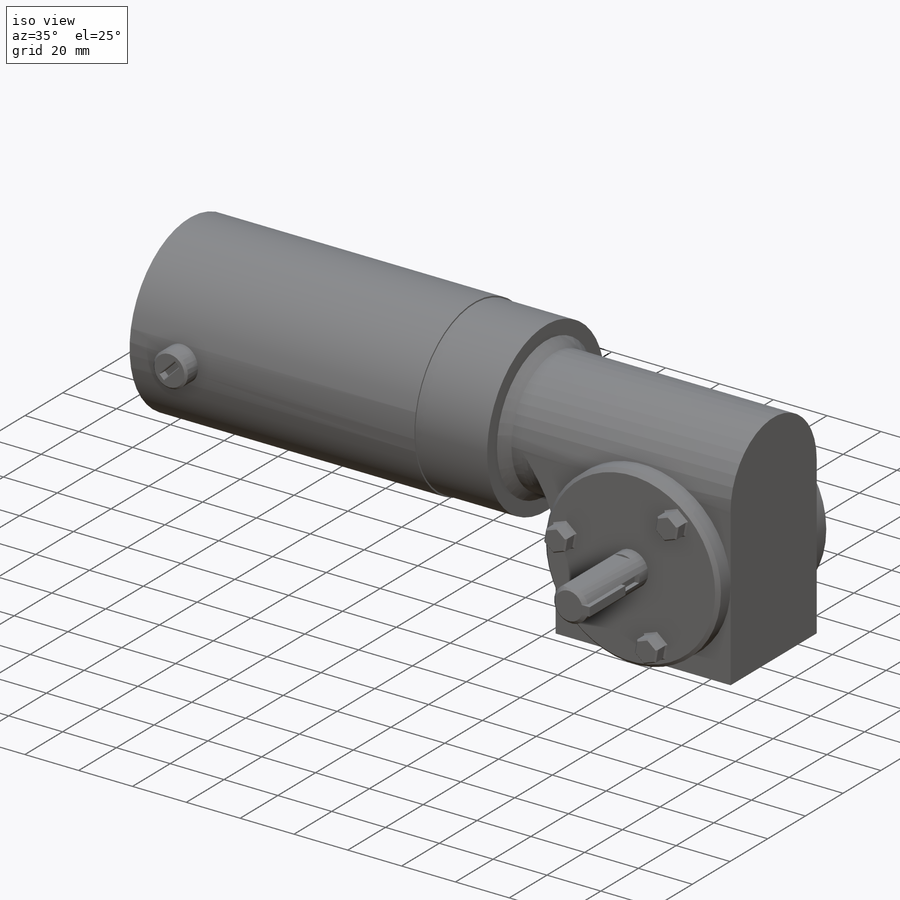
[diagram: iso view]
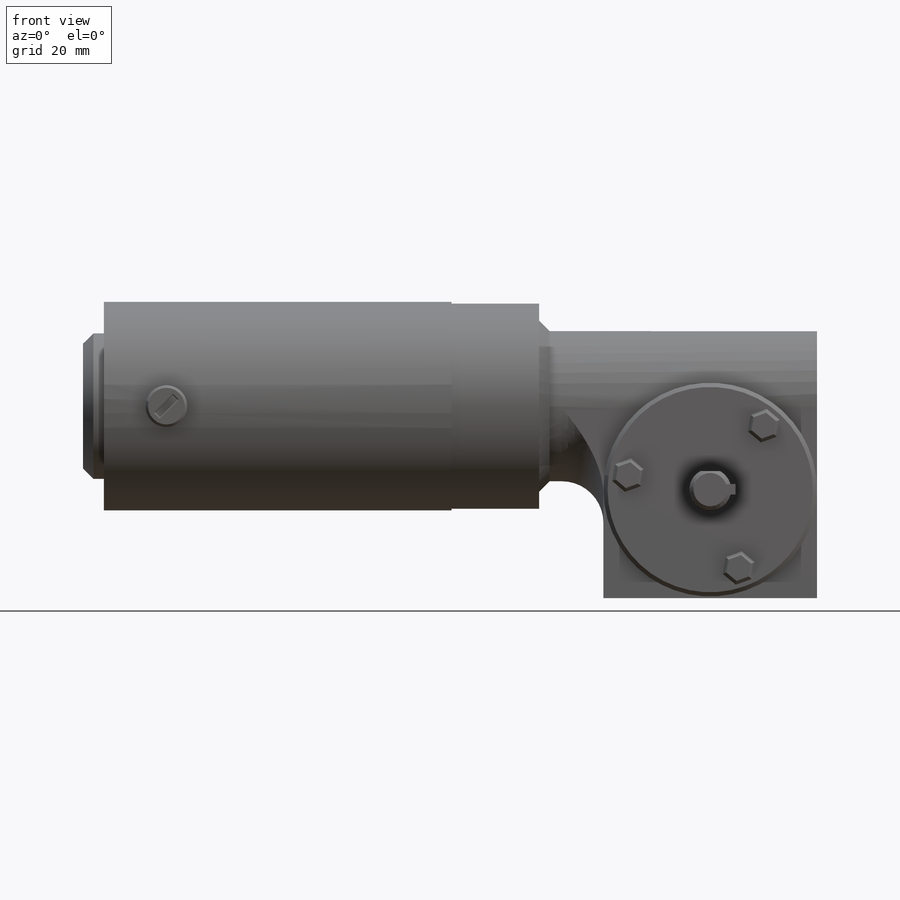
[diagram: front view]
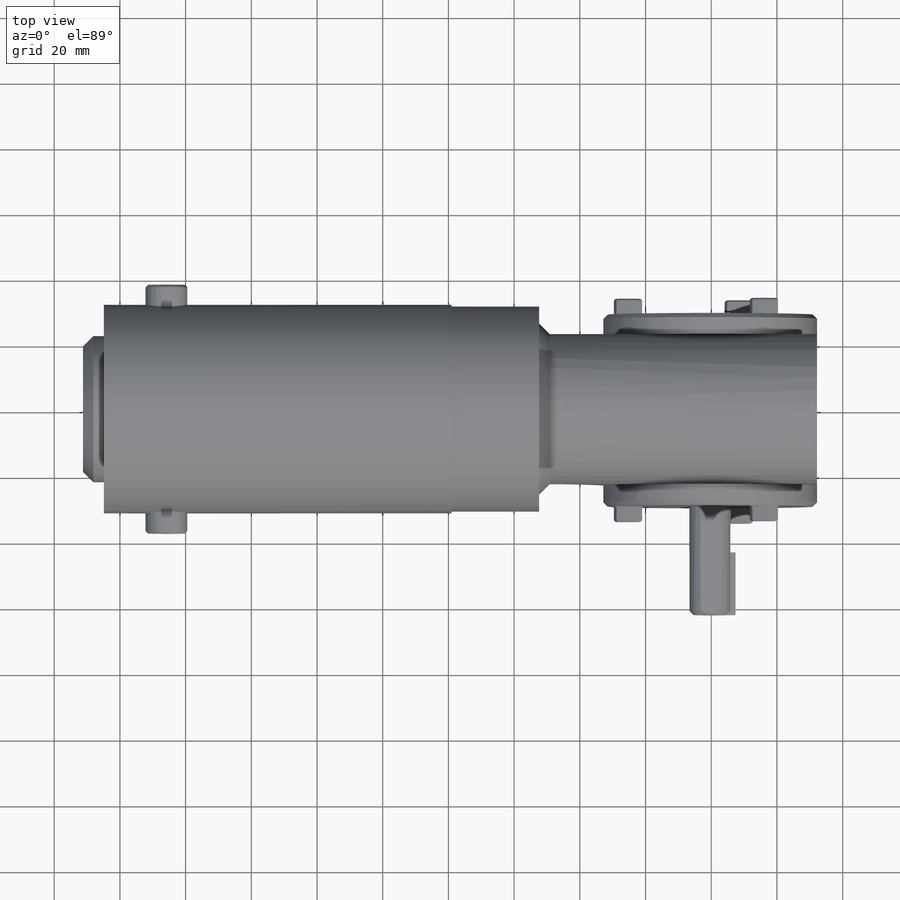
[diagram: top view]
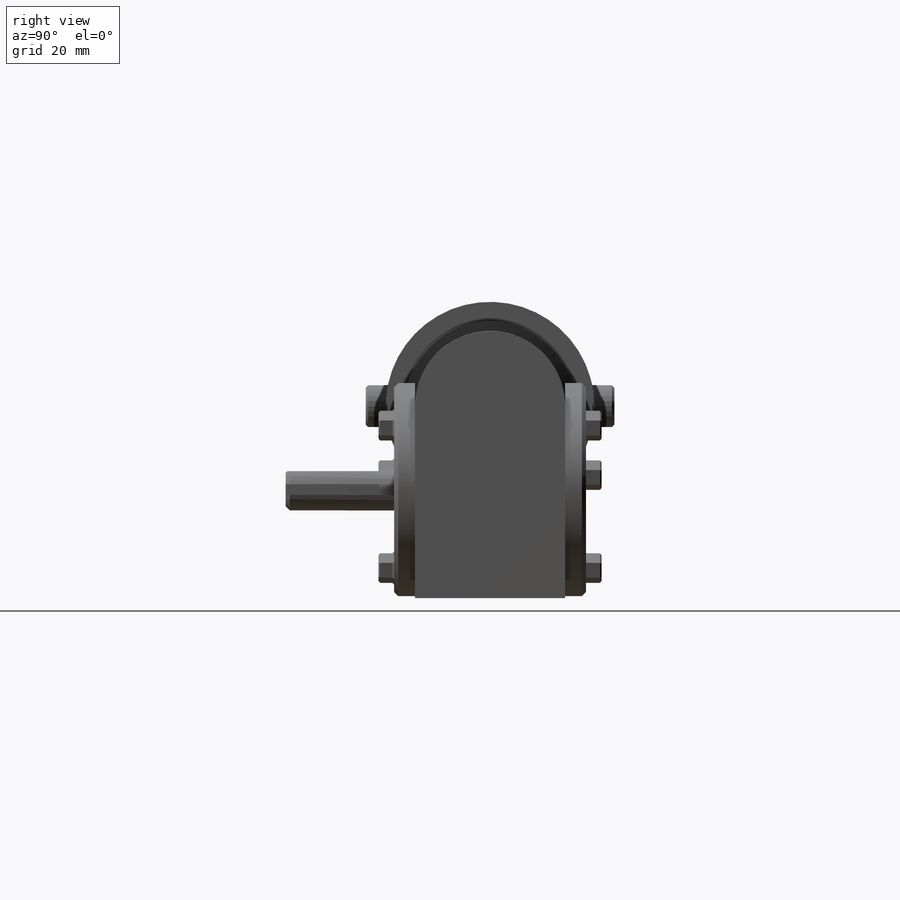
[diagram: right view]
SOLIDWORKS PART (.sldprt)
format: sldprt  version: not decoded by parser v0  size: 663,552 bytes
history: native  units: mm
features: sketch x11, chamfer x7, extrude x6, plane x4, mirror x3, revolve x2, cut_extrude x2, material x1, fillet x1, pattern_circular x1, cut_revolve x1, pattern_linear x1 (+14 scaffold rows collapsed)
feature tree (54):
  scaffold x14  (default folders/planes/origin — collapsed)
  material  "Plain Carbon Steel"
  sketch  "Sketch1"  dims[P=63.5mm D1=44.45mm XH=131.2418mm D2=6.35mm D3=19.05mm D4=0.508mm]
  revolve  "Revolve1"  Angle=360deg
  chamfer  "Chamfer1"  Distance=3.175mm Angle=45deg
  plane  "Plane1"  Offset=62.23mm
  sketch  "Sketch3"  dims[c1.D1=~9.096518mm c1.D3=12.7mm c2.D1=59.69mm c2.D2=25.4mm]
  extrude  "Extrude1"  [1 undecoded]
  sketch  "Sketch4"  dims[D1=11.9888mm D2=10.8585mm D3=3.2258mm]
  cut_extrude  "Cut-Extrude1"  Depth=28.448mm
  chamfer  "Chamfer6"  Distance=1.27mm Angle=45deg
  plane  "Plane2"  Offset=33.02mm
  sketch  "Sketch5"  dims[X=92.202mm]
  extrude  "Extrude2"  Depth=6.3754mm
  sketch  "Sketch6"  dims[c1.D3=65.024mm c1.D1=7.62mm c1.D2=45.72mm c2.D3=19.05mm c2.D4=~52.352646mm c3.D4=10.0deg]
  revolve  "Revolve6"  Angle=360deg
  plane  "Plane3"  Offset=58.42mm
  sketch  "Sketch7"
  extrude  "Extrude3"  [1 undecoded]
  fillet  "Fillet1"  Radius=12.7mm
  chamfer  "Chamfer2"  Distance=3.175mm Angle=45deg
  mirror  "Mirror1"
  sketch  "Sketch8"  dims[D1=0.0254mm D2=0.0254mm D3=0.0254mm]
  extrude  "Extrude4"  Depth=19.05mm
  sketch  "Sketch9"  dims[D1=12.7mm D2=25.4mm]
  extrude  "Extrude5"  Depth=75.692mm PB=75.692mm
  chamfer  "Chamfer3"  Distance=0.762mm Angle=45deg
  sketch  "Sketch10"  dims[c1.D1=2.032mm c1.D2=7.62mm c1.D3=~5.30526mm c2.D3=45.0deg]
  cut_extrude  "Cut-Extrude2"  Depth=2.54mm
  mirror  "Mirror5"
  chamfer  "Chamfer4"  Distance=0.254mm Angle=45deg
  sketch  "Sketch13"  dims[c1.D1=~14.903383mm c2.D1=20.0deg c2.D2=7.9248mm c2.D3=25.4mm]
  extrude  "Extrude6"  Depth=4.7498mm
  chamfer  "Chamfer5"  Distance=0.508mm Angle=45deg
  pattern_circular  "CirPattern2"  Count=3 Angle=360deg
  mirror  "Mirror6"
  plane  "Plane4"  Offset=15.113mm
  sketch  "Sketch14"  dims[c1.D1=19.05mm c1.D2=6.35mm c1.D3=1.27mm c1.D4=0.3175mm c1.D5=~0.15875mm c1.D6=~0.544819mm c2.D6=60.0deg c2.D7=~4.141675mm c3.D7=41.0deg c3.D8=50.8mm]
  cut_revolve  "Cut-Revolve2"  Angle=360deg
  pattern_linear  "LPattern1"  Count1=2 Count2=2 Spacing1=50.8mm Spacing2=30.226mm
  chamfer  "Chamfer7"  Distance=1.27mm Angle=45deg hex flats=14.2748mm hex flats/2=7.366mm
decode coverage: 29 of 35 modeling features carry decoded parameters
note: ~ marks probable driven/reference dimensions
note: 2 parameter values undecoded
note: suppression state not decoded; provenance and decode notes live in map.json
